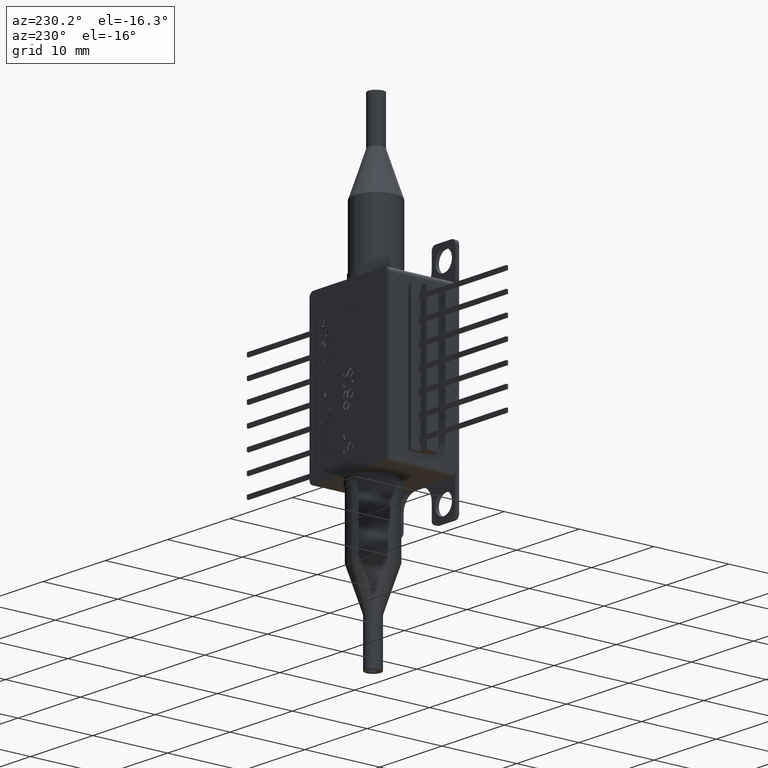
[diagram: clean part render]
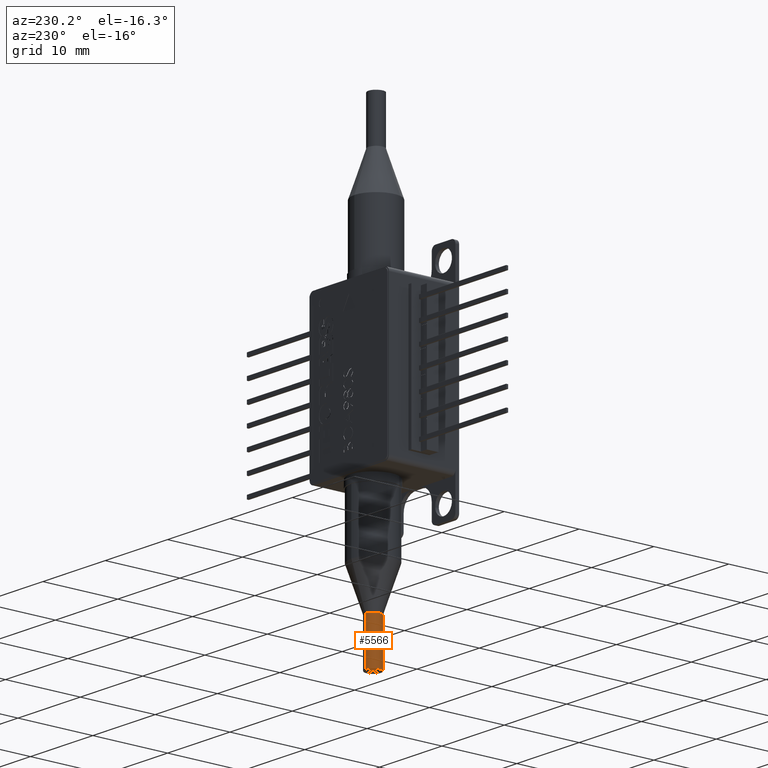
[diagram: same view with one face highlighted and labeled with its STEP entity id]
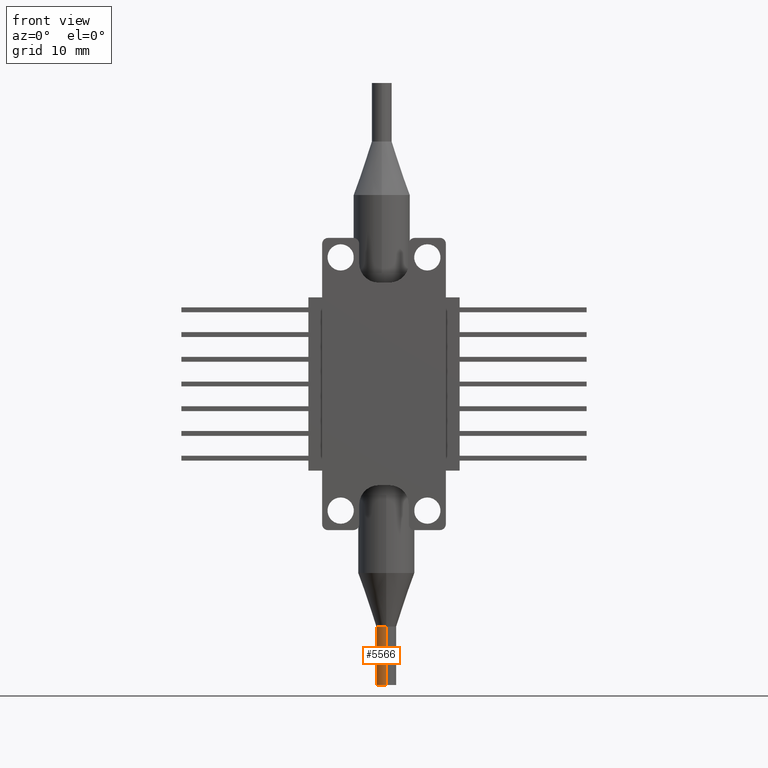
[diagram: same view with one face highlighted and labeled with its STEP entity id]
A machine part, auxiliary view. The second image highlights one B-rep face of the part: STEP entity #5566.
A second angle (front view) of the same face is appended — the face is thin or edge-on in the first view.
In plain terms, the highlighted cylindrical surface (edge-blend (fillet) strip) has radius 1.02 mm, axis along (-0, 0, -1).
Its self-contained STEP definition (entity closure, byte-faithful):
#56 = VECTOR ( 'NONE', #19859, 1000.000000000000000 ) ;
#177 = VECTOR ( 'NONE', #20183, 1000.000000000000000 ) ;
#1077 = VERTEX_POINT ( 'NONE', #15193 ) ;
#1209 = CARTESIAN_POINT ( 'NONE',  ( -103.5761848420183071, 21.53885114794376321, 16.79721449318330784 ) ) ;
#1248 = DIRECTION ( 'NONE',  ( 0.0000000000000000000, 1.000000000000000000, 0.0000000000000000000 ) ) ;
#2400 = DIRECTION ( 'NONE',  ( 0.0000000000000000000, 1.000000000000000000, 0.0000000000000000000 ) ) ;
#2675 = EDGE_LOOP ( 'NONE', ( #4360, #10533, #9808, #15581 ) ) ;
#3131 = EDGE_CURVE ( 'NONE', #13262, #4790, #8914, .T. ) ;
#3877 = AXIS2_PLACEMENT_3D ( 'NONE', #20728, #5700, #4160 ) ;
#4160 = DIRECTION ( 'NONE',  ( 0.0000000000000000000, 1.000000000000000000, 0.0000000000000000000 ) ) ;
#4250 = AXIS2_PLACEMENT_3D ( 'NONE', #6285, #11275, #1248 ) ;
#4360 = ORIENTED_EDGE ( 'NONE', *, *, #21334, .F. ) ;
#4790 = VERTEX_POINT ( 'NONE', #1209 ) ;
#5566 = ADVANCED_FACE ( 'NONE', ( #15336 ), #17704, .T. ) ;
#5700 = DIRECTION ( 'NONE',  ( -0.0000000000000000000, 0.0000000000000000000, -1.000000000000000000 ) ) ;
#6285 = CARTESIAN_POINT ( 'NONE',  ( -103.5761848420183071, 20.51885114794376364, 10.79721449318330961 ) ) ;
#7382 = DIRECTION ( 'NONE',  ( -0.0000000000000000000, 0.0000000000000000000, -1.000000000000000000 ) ) ;
#7955 = VERTEX_POINT ( 'NONE', #16026 ) ;
#8914 = CIRCLE ( 'NONE', #16220, 1.020000000000000018 ) ;
#9627 = LINE ( 'NONE', #16860, #177 ) ;
#9715 = CARTESIAN_POINT ( 'NONE',  ( -103.5761848420183071, 19.49885114794376406, 22.29721449318330784 ) ) ;
#9808 = ORIENTED_EDGE ( 'NONE', *, *, #20172, .T. ) ;
#10533 = ORIENTED_EDGE ( 'NONE', *, *, #3131, .T. ) ;
#10887 = EDGE_CURVE ( 'NONE', #1077, #7955, #12853, .T. ) ;
#11275 = DIRECTION ( 'NONE',  ( -0.0000000000000000000, 0.0000000000000000000, -1.000000000000000000 ) ) ;
#11326 = LINE ( 'NONE', #9715, #56 ) ;
#12853 = CIRCLE ( 'NONE', #4250, 1.020000000000000018 ) ;
#13262 = VERTEX_POINT ( 'NONE', #16040 ) ;
#14099 = CARTESIAN_POINT ( 'NONE',  ( -103.5761848420183071, 20.51885114794376364, 16.79721449318330784 ) ) ;
#15193 = CARTESIAN_POINT ( 'NONE',  ( -103.5761848420183071, 19.49885114794376406, 10.79721449318330961 ) ) ;
#15336 = FACE_OUTER_BOUND ( 'NONE', #2675, .T. ) ;
#15581 = ORIENTED_EDGE ( 'NONE', *, *, #10887, .F. ) ;
#16026 = CARTESIAN_POINT ( 'NONE',  ( -103.5761848420183071, 21.53885114794376321, 10.79721449318330961 ) ) ;
#16040 = CARTESIAN_POINT ( 'NONE',  ( -103.5761848420183071, 19.49885114794376406, 16.79721449318330784 ) ) ;
#16220 = AXIS2_PLACEMENT_3D ( 'NONE', #14099, #7382, #2400 ) ;
#16860 = CARTESIAN_POINT ( 'NONE',  ( -103.5761848420183071, 21.53885114794376321, 22.29721449318330784 ) ) ;
#17704 = CYLINDRICAL_SURFACE ( 'NONE', #3877, 1.020000000000000018 ) ;
#19859 = DIRECTION ( 'NONE',  ( -0.0000000000000000000, 0.0000000000000000000, -1.000000000000000000 ) ) ;
#20172 = EDGE_CURVE ( 'NONE', #4790, #7955, #9627, .T. ) ;
#20183 = DIRECTION ( 'NONE',  ( -0.0000000000000000000, 0.0000000000000000000, -1.000000000000000000 ) ) ;
#20728 = CARTESIAN_POINT ( 'NONE',  ( -103.5761848420183071, 20.51885114794376364, 22.29721449318330784 ) ) ;
#21334 = EDGE_CURVE ( 'NONE', #13262, #1077, #11326, .T. ) ;